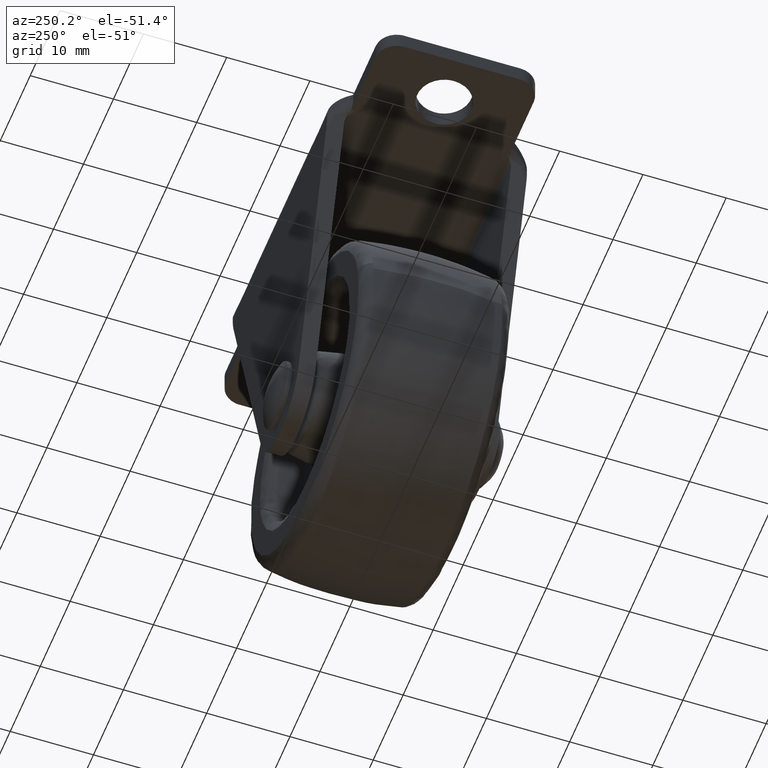
[diagram: clean part render]
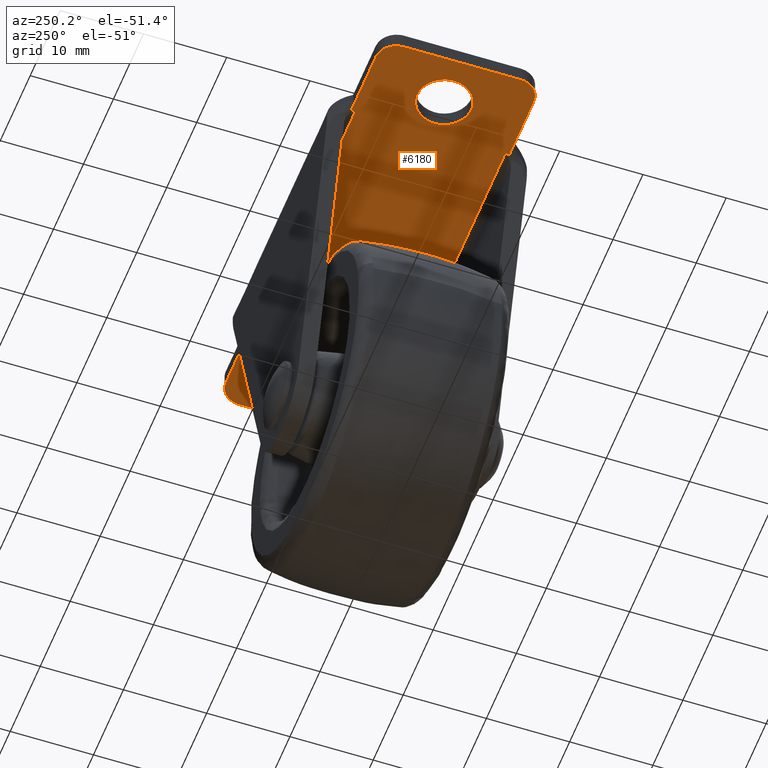
[diagram: same view with one face highlighted and labeled with its STEP entity id]
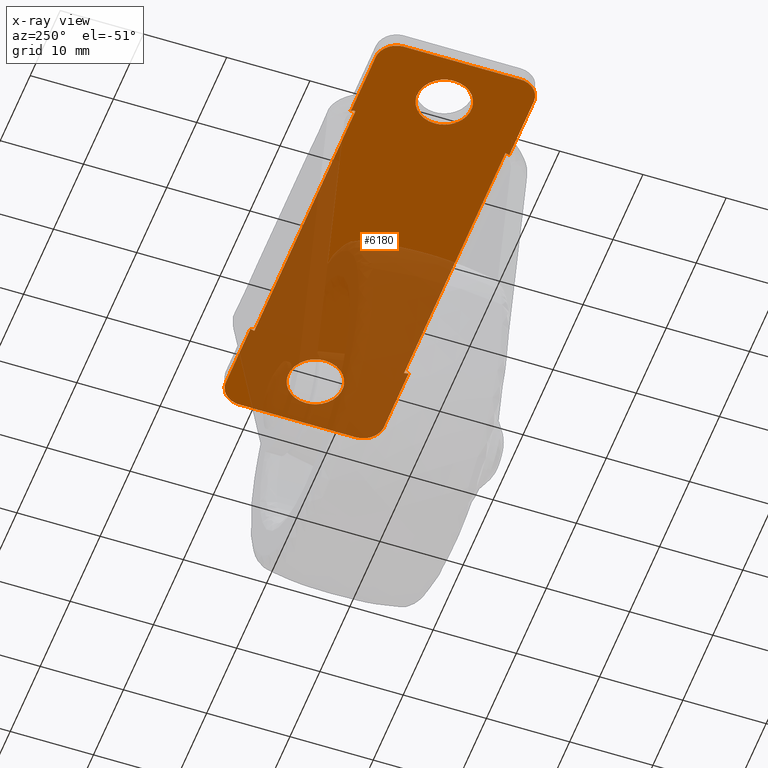
[diagram: x-ray of the same camera — body ghosted, the highlighted face saturated]
A machine part, auxiliary view. The second image highlights one B-rep face of the part: STEP entity #6180.
The next image is the same camera in x-ray: the body ghosted, the highlighted face saturated — about 50% of this face is hidden behind the body in this view.
In plain terms, the highlighted face is a freeform B-spline surface patch.
Its self-contained STEP definition (entity closure, byte-faithful):
#3215=CARTESIAN_POINT('',(-21.883611262741759,-3.227280960669162,-1.999999999999780));
#3216=VERTEX_POINT('',#3215);
#3217=CARTESIAN_POINT('',(-18.250000000000000,0.0,-1.999999999999780));
#3218=VERTEX_POINT('',#3217);
#3219=CARTESIAN_POINT('',(-21.883611262741752,-3.227280960669163,-1.999999999999780));
#3220=CARTESIAN_POINT('',(-21.692478388977136,-3.249999999999999,-1.999999999999780));
#3221=CARTESIAN_POINT('',(-21.500000000000000,-3.250000000000000,-1.999999999999780));
#3222=CARTESIAN_POINT('',(-18.250000000000000,-3.250000000000000,-1.999999999999781));
#3223=CARTESIAN_POINT('',(-18.250000000000000,0.0,-1.999999999999780));
#3231=(BOUNDED_CURVE()B_SPLINE_CURVE(2,(#3219,#3220,#3221,#3222,#3223),.UNSPECIFIED.,.F.,.U.)B_SPLINE_CURVE_WITH_KNOTS((3,2,3),(0.229562473504407,0.250000000000000,0.500000000000000),.UNSPECIFIED.)CURVE()GEOMETRIC_REPRESENTATION_ITEM()RATIONAL_B_SPLINE_CURVE((0.956026754165861,0.976055948320482,1.0,0.707106781186547,1.0))REPRESENTATION_ITEM(''));
#3232=EDGE_CURVE('',#3216,#3218,#3231,.T.);
#3273=CARTESIAN_POINT('',(-21.301592246493950,3.243938094869980,-1.999999999999780));
#3274=VERTEX_POINT('',#3273);
#3280=CARTESIAN_POINT('',(-18.250000000000000,0.0,-1.999999999999780));
#3281=CARTESIAN_POINT('',(-18.250000000000000,3.057294717409945,-1.999999999999781));
#3282=CARTESIAN_POINT('',(-21.301592246493950,3.243938094869980,-1.999999999999780));
#3290=(BOUNDED_CURVE()B_SPLINE_CURVE(2,(#3280,#3281,#3282),.UNSPECIFIED.,.F.,.U.)B_SPLINE_CURVE_WITH_KNOTS((3,3),(0.500000000000000,0.739332962240078),.UNSPECIFIED.)CURVE()GEOMETRIC_REPRESENTATION_ITEM()RATIONAL_B_SPLINE_CURVE((1.0,0.719603993285381,0.976072041669149))REPRESENTATION_ITEM(''));
#3291=EDGE_CURVE('',#3218,#3274,#3290,.T.);
#3314=CARTESIAN_POINT('',(-24.750000000000000,0.0,-1.999999999999780));
#3315=VERTEX_POINT('',#3314);
#3316=CARTESIAN_POINT('',(-24.750000000000000,0.0,-1.999999999999780));
#3317=CARTESIAN_POINT('',(-24.750000000000000,-2.886567209148665,-1.999999999999780));
#3318=CARTESIAN_POINT('',(-21.883611262741763,-3.227280960669162,-1.999999999999780));
#3326=(BOUNDED_CURVE()B_SPLINE_CURVE(2,(#3316,#3317,#3318),.UNSPECIFIED.,.F.,.U.)B_SPLINE_CURVE_WITH_KNOTS((3,3),(0.0,0.229562473504407),.UNSPECIFIED.)CURVE()GEOMETRIC_REPRESENTATION_ITEM()RATIONAL_B_SPLINE_CURVE((1.0,0.731050832866065,0.956026754165861))REPRESENTATION_ITEM(''));
#3327=EDGE_CURVE('',#3315,#3216,#3326,.T.);
#3329=CARTESIAN_POINT('',(-21.301592246493943,3.243938094869980,-1.999999999999781));
#3330=CARTESIAN_POINT('',(-21.400703519261775,3.250000000000000,-1.999999999999780));
#3331=CARTESIAN_POINT('',(-21.500000000000000,3.250000000000000,-1.999999999999780));
#3332=CARTESIAN_POINT('',(-24.750000000000000,3.250000000000000,-1.999999999999781));
#3333=CARTESIAN_POINT('',(-24.750000000000000,0.0,-1.999999999999780));
#3341=(BOUNDED_CURVE()B_SPLINE_CURVE(2,(#3329,#3330,#3331,#3332,#3333),.UNSPECIFIED.,.F.,.U.)B_SPLINE_CURVE_WITH_KNOTS((3,2,3),(0.739332962240078,0.750000000000000,1.0),.UNSPECIFIED.)CURVE()GEOMETRIC_REPRESENTATION_ITEM()RATIONAL_B_SPLINE_CURVE((0.976072041669151,0.987502787901168,1.0,0.707106781186547,1.0))REPRESENTATION_ITEM(''));
#3342=EDGE_CURVE('',#3274,#3315,#3341,.T.);
#3401=CARTESIAN_POINT('',(21.116388737258241,-3.227280960669162,-1.999999999999780));
#3402=VERTEX_POINT('',#3401);
#3403=CARTESIAN_POINT('',(24.750000000000000,0.0,-1.999999999999780));
#3404=VERTEX_POINT('',#3403);
#3405=CARTESIAN_POINT('',(21.116388737258241,-3.227280960669162,-1.999999999999781));
#3406=CARTESIAN_POINT('',(21.307521611022867,-3.250000000000000,-1.999999999999780));
#3407=CARTESIAN_POINT('',(21.500000000000000,-3.250000000000000,-1.999999999999780));
#3408=CARTESIAN_POINT('',(24.750000000000000,-3.250000000000000,-1.999999999999781));
#3409=CARTESIAN_POINT('',(24.750000000000000,0.0,-1.999999999999780));
#3417=(BOUNDED_CURVE()B_SPLINE_CURVE(2,(#3405,#3406,#3407,#3408,#3409),.UNSPECIFIED.,.F.,.U.)B_SPLINE_CURVE_WITH_KNOTS((3,2,3),(0.229562473504407,0.250000000000000,0.500000000000000),.UNSPECIFIED.)CURVE()GEOMETRIC_REPRESENTATION_ITEM()RATIONAL_B_SPLINE_CURVE((0.956026754165861,0.976055948320483,1.0,0.707106781186547,1.0))REPRESENTATION_ITEM(''));
#3418=EDGE_CURVE('',#3402,#3404,#3417,.T.);
#3459=CARTESIAN_POINT('',(21.698407753506050,3.243938094869980,-1.999999999999780));
#3460=VERTEX_POINT('',#3459);
#3466=CARTESIAN_POINT('',(24.750000000000000,0.0,-1.999999999999780));
#3467=CARTESIAN_POINT('',(24.750000000000004,3.057294717409945,-1.999999999999781));
#3468=CARTESIAN_POINT('',(21.698407753506050,3.243938094869980,-1.999999999999780));
#3476=(BOUNDED_CURVE()B_SPLINE_CURVE(2,(#3466,#3467,#3468),.UNSPECIFIED.,.F.,.U.)B_SPLINE_CURVE_WITH_KNOTS((3,3),(0.500000000000000,0.739332962240078),.UNSPECIFIED.)CURVE()GEOMETRIC_REPRESENTATION_ITEM()RATIONAL_B_SPLINE_CURVE((1.0,0.719603993285381,0.976072041669149))REPRESENTATION_ITEM(''));
#3477=EDGE_CURVE('',#3404,#3460,#3476,.T.);
#3500=CARTESIAN_POINT('',(18.250000000000000,0.0,-1.999999999999780));
#3501=VERTEX_POINT('',#3500);
#3502=CARTESIAN_POINT('',(18.250000000000000,0.0,-1.999999999999780));
#3503=CARTESIAN_POINT('',(18.250000000000004,-2.886567209148666,-1.999999999999780));
#3504=CARTESIAN_POINT('',(21.116388737258244,-3.227280960669162,-1.999999999999781));
#3512=(BOUNDED_CURVE()B_SPLINE_CURVE(2,(#3502,#3503,#3504),.UNSPECIFIED.,.F.,.U.)B_SPLINE_CURVE_WITH_KNOTS((3,3),(0.0,0.229562473504407),.UNSPECIFIED.)CURVE()GEOMETRIC_REPRESENTATION_ITEM()RATIONAL_B_SPLINE_CURVE((1.0,0.731050832866065,0.956026754165861))REPRESENTATION_ITEM(''));
#3513=EDGE_CURVE('',#3501,#3402,#3512,.T.);
#3515=CARTESIAN_POINT('',(21.698407753506054,3.243938094869981,-1.999999999999781));
#3516=CARTESIAN_POINT('',(21.599296480738229,3.250000000000000,-1.999999999999781));
#3517=CARTESIAN_POINT('',(21.500000000000000,3.250000000000000,-1.999999999999780));
#3518=CARTESIAN_POINT('',(18.250000000000000,3.250000000000000,-1.999999999999781));
#3519=CARTESIAN_POINT('',(18.250000000000000,0.0,-1.999999999999780));
#3527=(BOUNDED_CURVE()B_SPLINE_CURVE(2,(#3515,#3516,#3517,#3518,#3519),.UNSPECIFIED.,.F.,.U.)B_SPLINE_CURVE_WITH_KNOTS((3,2,3),(0.739332962240079,0.750000000000000,1.0),.UNSPECIFIED.)CURVE()GEOMETRIC_REPRESENTATION_ITEM()RATIONAL_B_SPLINE_CURVE((0.976072041669152,0.987502787901168,1.0,0.707106781186547,1.0))REPRESENTATION_ITEM(''));
#3528=EDGE_CURVE('',#3460,#3501,#3527,.T.);
#3998=CARTESIAN_POINT('',(-16.774391863535001,9.589350856662620,-1.999999999999800));
#3999=VERTEX_POINT('',#3998);
#4021=CARTESIAN_POINT('',(-16.963986509135200,9.500000000000000,-1.999999999999780));
#4022=VERTEX_POINT('',#4021);
#4023=CARTESIAN_POINT('',(-16.963986509135200,9.500000000000000,-1.999999999999780));
#4024=CARTESIAN_POINT('',(-16.945395367764871,9.500000000000002,-1.999999999999781));
#4025=CARTESIAN_POINT('',(-16.927059779156739,9.501598062095068,-1.999999999999801));
#4026=CARTESIAN_POINT('',(-16.890873242756669,9.507824817265108,-1.999999999999800));
#4027=CARTESIAN_POINT('',(-16.872902323235319,9.512472892403533,-1.999999999999800));
#4028=CARTESIAN_POINT('',(-16.838134473182929,9.525546732116244,-1.999999999999801));
#4029=CARTESIAN_POINT('',(-16.821276113439200,9.533926459354701,-1.999999999999800));
#4030=CARTESIAN_POINT('',(-16.799233459098431,9.550675918229734,-1.999999999999800));
#4031=CARTESIAN_POINT('',(-16.792320433094840,9.557078034416609,-1.999999999999800));
#4032=CARTESIAN_POINT('',(-16.780932627242400,9.571762555345178,-1.999999999999801));
#4033=CARTESIAN_POINT('',(-16.776417345664910,9.580163195930876,-1.999999999999801));
#4034=CARTESIAN_POINT('',(-16.774391863535001,9.589350856662620,-1.999999999999800));
#4035=B_SPLINE_CURVE_WITH_KNOTS('',3,(#4023,#4024,#4025,#4026,#4027,#4028,#4029,#4030,#4031,#4032,#4033,#4034),.UNSPECIFIED.,.F.,.U.,(4,2,2,2,2,4),(0.0,0.250000000000000,0.500000000000000,0.750000000000000,0.875000000000000,1.0),.UNSPECIFIED.);
#4036=EDGE_CURVE('',#4022,#3999,#4035,.T.);
#4151=CARTESIAN_POINT('',(-16.774391863535001,-9.589350856662620,-1.999999999999785));
#4152=VERTEX_POINT('',#4151);
#4153=CARTESIAN_POINT('',(-16.963986509135150,-9.500000000000000,-1.999999999999780));
#4154=VERTEX_POINT('',#4153);
#4155=CARTESIAN_POINT('',(-16.774391863535001,-9.589350856662620,-1.999999999999785));
#4156=CARTESIAN_POINT('',(-16.776423522274790,-9.580135178601680,-1.999999999999785));
#4157=CARTESIAN_POINT('',(-16.780918680876511,-9.571784206048262,-1.999999999999800));
#4158=CARTESIAN_POINT('',(-16.792309855274461,-9.557088015419232,-1.999999999999798));
#4159=CARTESIAN_POINT('',(-16.799185678133600,-9.550710612024934,-1.999999999999801));
#4160=CARTESIAN_POINT('',(-16.821417011386949,-9.533822627419912,-1.999999999999800));
#4161=CARTESIAN_POINT('',(-16.838116855534249,-9.525557235809972,-1.999999999999800));
#4162=CARTESIAN_POINT('',(-16.872826607206392,-9.512497495616140,-1.999999999999799));
#4163=CARTESIAN_POINT('',(-16.890612128722118,-9.507883733551038,-1.999999999999800));
#4164=CARTESIAN_POINT('',(-16.926849387760100,-9.501620460315193,-1.999999999999800));
#4165=CARTESIAN_POINT('',(-16.945406447984720,-9.500000000000000,-1.999999999999801));
#4166=CARTESIAN_POINT('',(-16.963986509135150,-9.500000000000000,-1.999999999999800));
#4167=B_SPLINE_CURVE_WITH_KNOTS('',3,(#4155,#4156,#4157,#4158,#4159,#4160,#4161,#4162,#4163,#4164,#4165,#4166),.UNSPECIFIED.,.F.,.U.,(4,2,2,2,2,4),(0.0,0.125000000000014,0.250000000000028,0.500000000000019,0.750000000000009,1.0),.UNSPECIFIED.);
#4168=EDGE_CURVE('',#4152,#4154,#4167,.T.);
#4338=CARTESIAN_POINT('',(16.774391838674251,-9.589350857234798,-1.999999999999800));
#4339=VERTEX_POINT('',#4338);
#4361=CARTESIAN_POINT('',(16.963986491007699,-9.500000000000000,-1.999999999999780));
#4362=VERTEX_POINT('',#4361);
#4363=CARTESIAN_POINT('',(16.963986491007699,-9.500000000000000,-1.999999999999780));
#4364=CARTESIAN_POINT('',(16.945395349110530,-9.500000000000004,-1.999999999999781));
#4365=CARTESIAN_POINT('',(16.927059759958770,-9.501598062095894,-1.999999999999801));
#4366=CARTESIAN_POINT('',(16.890873222438199,-9.507824817260330,-1.999999999999800));
#4367=CARTESIAN_POINT('',(16.872902302321069,-9.512472892399584,-1.999999999999800));
#4368=CARTESIAN_POINT('',(16.838134451155319,-9.525546732050106,-1.999999999999801));
#4369=CARTESIAN_POINT('',(16.821276090814681,-9.533926459233165,-1.999999999999800));
#4370=CARTESIAN_POINT('',(16.799233435500518,-9.550675918139740,-1.999999999999800));
#4371=CARTESIAN_POINT('',(16.792320409142061,-9.557078034371223,-1.999999999999800));
#4372=CARTESIAN_POINT('',(16.780932602696421,-9.571762555472091,-1.999999999999801));
#4373=CARTESIAN_POINT('',(16.776417320839389,-9.580163196238434,-1.999999999999801));
#4374=CARTESIAN_POINT('',(16.774391838674251,-9.589350857234798,-1.999999999999800));
#4375=B_SPLINE_CURVE_WITH_KNOTS('',3,(#4363,#4364,#4365,#4366,#4367,#4368,#4369,#4370,#4371,#4372,#4373,#4374),.UNSPECIFIED.,.F.,.U.,(4,2,2,2,2,4),(0.0,0.250000000000000,0.500000000000000,0.750000000000000,0.875000000000000,1.0),.UNSPECIFIED.);
#4376=EDGE_CURVE('',#4362,#4339,#4375,.T.);
#4491=CARTESIAN_POINT('',(16.774391838674251,9.589350857234798,-1.999999999999800));
#4492=VERTEX_POINT('',#4491);
#4493=CARTESIAN_POINT('',(16.963986491007649,9.500000000000000,-1.999999999999780));
#4494=VERTEX_POINT('',#4493);
#4495=CARTESIAN_POINT('',(16.774391838674251,9.589350857234798,-1.999999999999800));
#4496=CARTESIAN_POINT('',(16.776423497451361,9.580135178899644,-1.999999999999801));
#4497=CARTESIAN_POINT('',(16.780918656343740,9.571784206151602,-1.999999999999801));
#4498=CARTESIAN_POINT('',(16.792309831346881,9.557088015346686,-1.999999999999801));
#4499=CARTESIAN_POINT('',(16.799185654584878,9.550710611892461,-1.999999999999800));
#4500=CARTESIAN_POINT('',(16.821416988767432,9.533822627306332,-1.999999999999799));
#4501=CARTESIAN_POINT('',(16.838116833607739,9.525557235698511,-1.999999999999801));
#4502=CARTESIAN_POINT('',(16.872826586356560,9.512497495593966,-1.999999999999799));
#4503=CARTESIAN_POINT('',(16.890612108414881,9.507883733542357,-1.999999999999800));
#4504=CARTESIAN_POINT('',(16.926849368551849,9.501620460317172,-1.999999999999801));
#4505=CARTESIAN_POINT('',(16.945406429327491,9.500000000000000,-1.999999999999801));
#4506=CARTESIAN_POINT('',(16.963986491007649,9.500000000000000,-1.999999999999800));
#4507=B_SPLINE_CURVE_WITH_KNOTS('',3,(#4495,#4496,#4497,#4498,#4499,#4500,#4501,#4502,#4503,#4504,#4505,#4506),.UNSPECIFIED.,.F.,.U.,(4,2,2,2,2,4),(0.0,0.124999999999995,0.249999999999990,0.499999999999993,0.749999999999997,1.0),.UNSPECIFIED.);
#4508=EDGE_CURVE('',#4492,#4494,#4507,.T.);
#4722=CARTESIAN_POINT('',(16.897677543648999,-9.0,-1.999999999999800));
#4723=VERTEX_POINT('',#4722);
#4724=CARTESIAN_POINT('',(16.774391838674251,-9.589350857234798,-1.999999999999800));
#4725=CARTESIAN_POINT('',(16.817602147947561,-9.393347317929566,-1.999999999999800));
#4726=CARTESIAN_POINT('',(16.858166052446698,-9.196779621510531,-1.999999999999800));
#4727=CARTESIAN_POINT('',(16.897677543648999,-9.0,-1.999999999999800));
#4728=QUASI_UNIFORM_CURVE('',3,(#4724,#4725,#4726,#4727),.UNSPECIFIED.,.F.,.U.);
#4729=EDGE_CURVE('',#4339,#4723,#4728,.T.);
#4898=CARTESIAN_POINT('',(-16.897677569397999,-9.0,-1.999999999999800));
#4899=VERTEX_POINT('',#4898);
#4900=CARTESIAN_POINT('',(-16.897677569397999,-9.0,-1.999999999999800));
#4901=CARTESIAN_POINT('',(-16.858166078027448,-9.196779621348968,-1.999999999999800));
#4902=CARTESIAN_POINT('',(-16.817602173250592,-9.393347317582760,-1.999999999999800));
#4903=CARTESIAN_POINT('',(-16.774391863535001,-9.589350856662620,-1.999999999999785));
#4904=QUASI_UNIFORM_CURVE('',3,(#4900,#4901,#4902,#4903),.UNSPECIFIED.,.F.,.U.);
#4905=EDGE_CURVE('',#4899,#4152,#4904,.T.);
#5046=CARTESIAN_POINT('',(-16.897677569397999,9.0,-1.999999999999800));
#5047=VERTEX_POINT('',#5046);
#5048=CARTESIAN_POINT('',(-16.774391863535001,9.589350856662620,-1.999999999999800));
#5049=CARTESIAN_POINT('',(-16.817602173250538,9.393347317582853,-1.999999999999800));
#5050=CARTESIAN_POINT('',(-16.858166078027640,9.196779621348989,-1.999999999999800));
#5051=CARTESIAN_POINT('',(-16.897677569397999,9.0,-1.999999999999800));
#5052=QUASI_UNIFORM_CURVE('',3,(#5048,#5049,#5050,#5051),.UNSPECIFIED.,.F.,.U.);
#5053=EDGE_CURVE('',#3999,#5047,#5052,.T.);
#5222=CARTESIAN_POINT('',(16.897677543649049,9.0,-1.999999999999800));
#5223=VERTEX_POINT('',#5222);
#5224=CARTESIAN_POINT('',(16.897677543649049,9.0,-1.999999999999800));
#5225=CARTESIAN_POINT('',(16.858166052446510,9.196779621510506,-1.999999999999800));
#5226=CARTESIAN_POINT('',(16.817602147947550,9.393347317929608,-1.999999999999800));
#5227=CARTESIAN_POINT('',(16.774391838674251,9.589350857234798,-1.999999999999800));
#5228=QUASI_UNIFORM_CURVE('',3,(#5224,#5225,#5226,#5227),.UNSPECIFIED.,.F.,.U.);
#5229=EDGE_CURVE('',#5223,#4492,#5228,.T.);
#5583=CARTESIAN_POINT('',(16.897677543648999,-9.0,-1.999999999999800));
#5584=CARTESIAN_POINT('',(-16.897677569397999,-9.0,-1.999999999999800));
#5585=QUASI_UNIFORM_CURVE('',1,(#5583,#5584),.UNSPECIFIED.,.F.,.U.);
#5586=EDGE_CURVE('',#4723,#4899,#5585,.T.);
#5672=CARTESIAN_POINT('',(-16.897677569397999,9.0,-1.999999999999800));
#5673=CARTESIAN_POINT('',(16.897677543649049,9.0,-1.999999999999800));
#5674=QUASI_UNIFORM_CURVE('',1,(#5672,#5673),.UNSPECIFIED.,.F.,.U.);
#5675=EDGE_CURVE('',#5047,#5223,#5674,.T.);
#6053=CARTESIAN_POINT('',(-30.247249893399331,-10.547326790664579,-1.999999999999800));
#6054=CARTESIAN_POINT('',(30.247251368614290,-10.547326790664579,-1.999999999999800));
#6055=CARTESIAN_POINT('',(-30.247249893399331,10.547327476548400,-1.999999999999800));
#6056=CARTESIAN_POINT('',(30.247251368614290,10.547327476548400,-1.999999999999800));
#6057=B_SPLINE_SURFACE_WITH_KNOTS('',1,1,((#6053,#6055),(#6054,#6056)),.UNSPECIFIED.,.F.,.F.,.U.,(2,2),(2,2),(0.0,60.494501262013607),(0.0,21.094654267212981),.UNSPECIFIED.);
#6058=CARTESIAN_POINT('',(-25.0,9.500000000000000,-1.999999999999780));
#6059=VERTEX_POINT('',#6058);
#6060=CARTESIAN_POINT('',(-16.963986509135200,9.500000000000000,-1.999999999999780));
#6061=CARTESIAN_POINT('',(-25.0,9.500000000000000,-1.999999999999780));
#6062=QUASI_UNIFORM_CURVE('',1,(#6060,#6061),.UNSPECIFIED.,.F.,.U.);
#6063=EDGE_CURVE('',#4022,#6059,#6062,.T.);
#6064=ORIENTED_EDGE('',*,*,#6063,.F.);
#6065=ORIENTED_EDGE('',*,*,#4036,.T.);
#6066=ORIENTED_EDGE('',*,*,#5053,.T.);
#6067=ORIENTED_EDGE('',*,*,#5675,.T.);
#6068=ORIENTED_EDGE('',*,*,#5229,.T.);
#6069=ORIENTED_EDGE('',*,*,#4508,.T.);
#6070=CARTESIAN_POINT('',(25.0,9.500000000000000,-1.999999999999780));
#6071=VERTEX_POINT('',#6070);
#6072=CARTESIAN_POINT('',(25.0,9.500000000000000,-1.999999999999780));
#6073=CARTESIAN_POINT('',(16.963986491007649,9.500000000000000,-1.999999999999780));
#6074=QUASI_UNIFORM_CURVE('',1,(#6072,#6073),.UNSPECIFIED.,.F.,.U.);
#6075=EDGE_CURVE('',#6071,#4494,#6074,.T.);
#6076=ORIENTED_EDGE('',*,*,#6075,.F.);
#6077=CARTESIAN_POINT('',(27.500000000000000,7.0,-1.999999999999780));
#6078=VERTEX_POINT('',#6077);
#6079=CARTESIAN_POINT('',(25.0,9.500000000000000,-1.999999999999780));
#6080=CARTESIAN_POINT('',(27.500000000000004,9.500000000000000,-1.999999999999780));
#6081=CARTESIAN_POINT('',(27.500000000000000,7.0,-1.999999999999780));
#6089=(BOUNDED_CURVE()B_SPLINE_CURVE(2,(#6079,#6080,#6081),.UNSPECIFIED.,.F.,.U.)CURVE()GEOMETRIC_REPRESENTATION_ITEM()QUASI_UNIFORM_CURVE()RATIONAL_B_SPLINE_CURVE((1.0,0.707106781186548,1.0))REPRESENTATION_ITEM(''));
#6090=EDGE_CURVE('',#6071,#6078,#6089,.T.);
#6091=ORIENTED_EDGE('',*,*,#6090,.T.);
#6092=CARTESIAN_POINT('',(27.500000000000000,-7.0,-1.999999999999780));
#6093=VERTEX_POINT('',#6092);
#6094=CARTESIAN_POINT('',(27.500000000000000,-7.0,-1.999999999999780));
#6095=CARTESIAN_POINT('',(27.500000000000000,7.0,-1.999999999999780));
#6096=QUASI_UNIFORM_CURVE('',1,(#6094,#6095),.UNSPECIFIED.,.F.,.U.);
#6097=EDGE_CURVE('',#6093,#6078,#6096,.T.);
#6098=ORIENTED_EDGE('',*,*,#6097,.F.);
#6099=CARTESIAN_POINT('',(25.0,-9.500000000000000,-1.999999999999780));
#6100=VERTEX_POINT('',#6099);
#6101=CARTESIAN_POINT('',(27.500000000000000,-7.0,-1.999999999999780));
#6102=CARTESIAN_POINT('',(27.500000000000004,-9.500000000000000,-1.999999999999780));
#6103=CARTESIAN_POINT('',(25.0,-9.500000000000000,-1.999999999999780));
#6111=(BOUNDED_CURVE()B_SPLINE_CURVE(2,(#6101,#6102,#6103),.UNSPECIFIED.,.F.,.U.)CURVE()GEOMETRIC_REPRESENTATION_ITEM()QUASI_UNIFORM_CURVE()RATIONAL_B_SPLINE_CURVE((1.0,0.707106781186548,1.0))REPRESENTATION_ITEM(''));
#6112=EDGE_CURVE('',#6093,#6100,#6111,.T.);
#6113=ORIENTED_EDGE('',*,*,#6112,.T.);
#6114=CARTESIAN_POINT('',(16.963986491007699,-9.500000000000000,-1.999999999999780));
#6115=CARTESIAN_POINT('',(25.0,-9.500000000000000,-1.999999999999780));
#6116=QUASI_UNIFORM_CURVE('',1,(#6114,#6115),.UNSPECIFIED.,.F.,.U.);
#6117=EDGE_CURVE('',#4362,#6100,#6116,.T.);
#6118=ORIENTED_EDGE('',*,*,#6117,.F.);
#6119=ORIENTED_EDGE('',*,*,#4376,.T.);
#6120=ORIENTED_EDGE('',*,*,#4729,.T.);
#6121=ORIENTED_EDGE('',*,*,#5586,.T.);
#6122=ORIENTED_EDGE('',*,*,#4905,.T.);
#6123=ORIENTED_EDGE('',*,*,#4168,.T.);
#6124=CARTESIAN_POINT('',(-25.0,-9.500000000000000,-1.999999999999780));
#6125=VERTEX_POINT('',#6124);
#6126=CARTESIAN_POINT('',(-25.0,-9.500000000000000,-1.999999999999780));
#6127=CARTESIAN_POINT('',(-16.963986509135150,-9.500000000000000,-1.999999999999780));
#6128=QUASI_UNIFORM_CURVE('',1,(#6126,#6127),.UNSPECIFIED.,.F.,.U.);
#6129=EDGE_CURVE('',#6125,#4154,#6128,.T.);
#6130=ORIENTED_EDGE('',*,*,#6129,.F.);
#6131=CARTESIAN_POINT('',(-27.500000000000000,-7.0,-1.999999999999780));
#6132=VERTEX_POINT('',#6131);
#6133=CARTESIAN_POINT('',(-25.0,-9.500000000000000,-1.999999999999780));
#6134=CARTESIAN_POINT('',(-27.500000000000004,-9.500000000000000,-1.999999999999780));
#6135=CARTESIAN_POINT('',(-27.500000000000000,-7.0,-1.999999999999780));
#6143=(BOUNDED_CURVE()B_SPLINE_CURVE(2,(#6133,#6134,#6135),.UNSPECIFIED.,.F.,.U.)CURVE()GEOMETRIC_REPRESENTATION_ITEM()QUASI_UNIFORM_CURVE()RATIONAL_B_SPLINE_CURVE((1.0,0.707106781186548,1.0))REPRESENTATION_ITEM(''));
#6144=EDGE_CURVE('',#6125,#6132,#6143,.T.);
#6145=ORIENTED_EDGE('',*,*,#6144,.T.);
#6146=CARTESIAN_POINT('',(-27.500000000000000,7.0,-1.999999999999780));
#6147=VERTEX_POINT('',#6146);
#6148=CARTESIAN_POINT('',(-27.500000000000000,7.0,-1.999999999999780));
#6149=CARTESIAN_POINT('',(-27.500000000000000,-7.0,-1.999999999999780));
#6150=QUASI_UNIFORM_CURVE('',1,(#6148,#6149),.UNSPECIFIED.,.F.,.U.);
#6151=EDGE_CURVE('',#6147,#6132,#6150,.T.);
#6152=ORIENTED_EDGE('',*,*,#6151,.F.);
#6153=CARTESIAN_POINT('',(-27.500000000000000,7.0,-1.999999999999780));
#6154=CARTESIAN_POINT('',(-27.500000000000004,9.500000000000000,-1.999999999999780));
#6155=CARTESIAN_POINT('',(-25.0,9.500000000000000,-1.999999999999780));
#6163=(BOUNDED_CURVE()B_SPLINE_CURVE(2,(#6153,#6154,#6155),.UNSPECIFIED.,.F.,.U.)CURVE()GEOMETRIC_REPRESENTATION_ITEM()QUASI_UNIFORM_CURVE()RATIONAL_B_SPLINE_CURVE((1.0,0.707106781186548,1.0))REPRESENTATION_ITEM(''));
#6164=EDGE_CURVE('',#6147,#6059,#6163,.T.);
#6165=ORIENTED_EDGE('',*,*,#6164,.T.);
#6166=EDGE_LOOP('',(#6064,#6065,#6066,#6067,#6068,#6069,#6076,#6091,#6098,#6113,#6118,#6119,#6120,#6121,#6122,#6123,#6130,#6145,#6152,#6165));
#6167=FACE_OUTER_BOUND('',#6166,.T.);
#6168=ORIENTED_EDGE('',*,*,#3477,.T.);
#6169=ORIENTED_EDGE('',*,*,#3528,.T.);
#6170=ORIENTED_EDGE('',*,*,#3513,.T.);
#6171=ORIENTED_EDGE('',*,*,#3418,.T.);
#6172=EDGE_LOOP('',(#6168,#6169,#6170,#6171));
#6173=FACE_BOUND('',#6172,.T.);
#6174=ORIENTED_EDGE('',*,*,#3291,.T.);
#6175=ORIENTED_EDGE('',*,*,#3342,.T.);
#6176=ORIENTED_EDGE('',*,*,#3327,.T.);
#6177=ORIENTED_EDGE('',*,*,#3232,.T.);
#6178=EDGE_LOOP('',(#6174,#6175,#6176,#6177));
#6179=FACE_BOUND('',#6178,.T.);
#6180=ADVANCED_FACE('',(#6167,#6173,#6179),#6057,.F.);